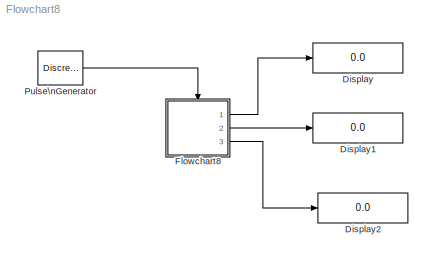
MODEL Flowchart8
KIND model
BLOCK [Display] Display
  Decimation = 1
  Ports = [1]
BLOCK [Display] Display1
  Decimation = 1
  Ports = [1]
BLOCK [Display] Display2
  Decimation = 1
  Ports = [1]
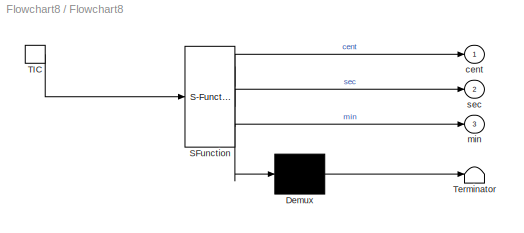
BLOCK [SubSystem] Flowchart8
  MaskDescription = Stateflow diagram
  MaskDisplay = plot(sf('Private','sfblk','xIcon'),sf('Private','sfblk','yIcon'));text(0.5,0,sf('Private', 'sfblk', 'tIcon'),'HorizontalAl','Center','VerticalAl','Bottom');
  MaskIconFrame = off
  MaskIconOpaque = off
  MaskIconRotate = none
  MaskIconUnits = autoscale
  MaskSelfModifiable = on
  MaskType = Stateflow
  MinAlgLoopOccurrences = off
  Ports = [0, 3, 0, 1]
  RTWSystemCode = Auto
  TreatAsAtomicUnit = off
BLOCK [Demux] Flowchart8/ Demux 
  Outputs = 1
  Ports = [1, 1]
BLOCK [S-Function] Flowchart8/ SFunction 
  FunctionName = sf_sfun
  PortCounts = [1 4]
  Ports = [1, 4]
  Tag = Stateflow S-Function Flowchart8 1
BLOCK [Terminator] Flowchart8/ Terminator 
BLOCK [TriggerPort] Flowchart8/TIC
  Ports = [0, 1]
  ShowOutputPort = on
  TriggerType = either
BLOCK [Outport] Flowchart8/cent
  BusOutputAsStruct = off
  IconDisplay = Port number
BLOCK [Outport] Flowchart8/min
  BusOutputAsStruct = off
  IconDisplay = Port number
  Port = 3
BLOCK [Outport] Flowchart8/sec
  BusOutputAsStruct = off
  IconDisplay = Port number
  Port = 2
BLOCK [DiscretePulseGenerator] Pulse\nGenerator
  Ports = [0, 1]
LINE Flowchart8/ Demux :1 -> Flowchart8/ Terminator :1
LINE Flowchart8/ SFunction :1 -> Flowchart8/ Demux :1
LINE Flowchart8/ SFunction :2 -> Flowchart8/cent:1
LINE Flowchart8/ SFunction :3 -> Flowchart8/sec:1
LINE Flowchart8/ SFunction :4 -> Flowchart8/min:1
LINE Flowchart8/TIC:1 -> Flowchart8/ SFunction :1
LINE Flowchart8:1 -> Display:1
LINE Flowchart8:2 -> Display1:1
LINE Flowchart8:3 -> Display2:1
LINE Pulse\nGenerator:1 -> Flowchart8:trigger
CHART Flowchart8 states=1 transitions=6
  STATE_LABEL 'A'
